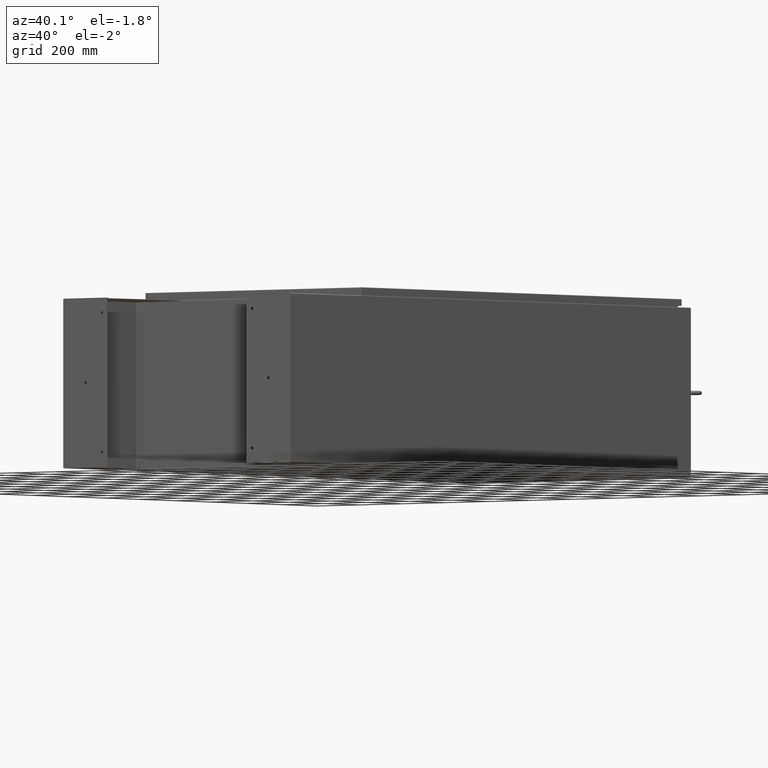
[diagram: clean part render]
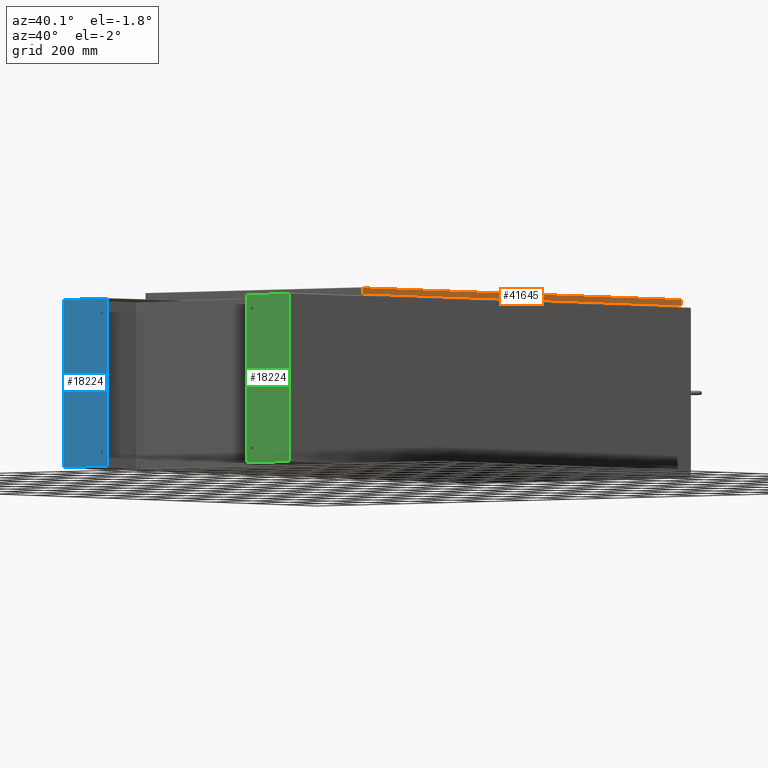
[diagram: same view with three faces highlighted in distinct colors, each labeled with its STEP entity id]
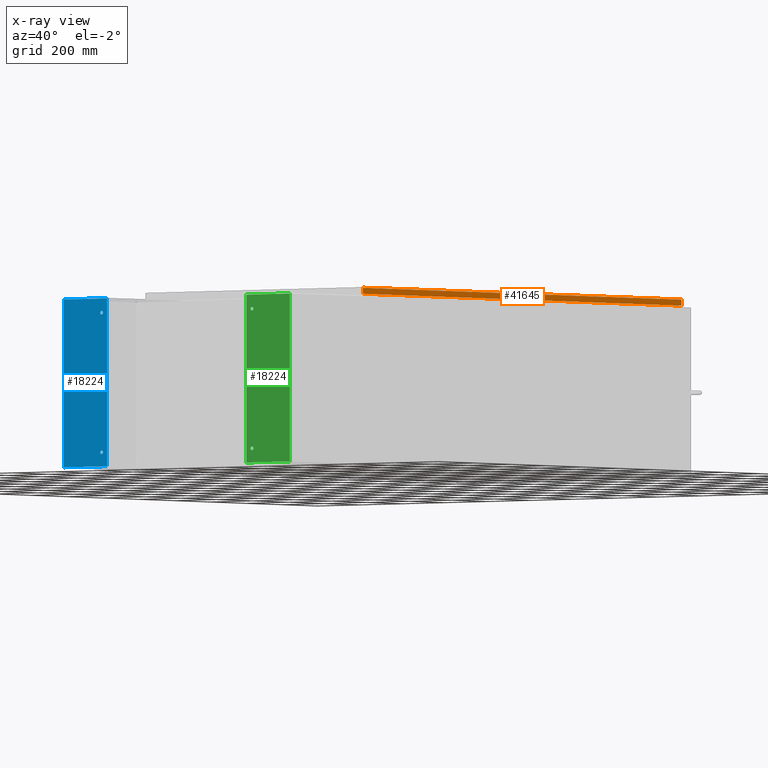
[diagram: x-ray of the same camera — body ghosted, the three highlighted faces saturated]
A machine part, auxiliary view with three faces highlighted in distinct colors.
The next image is the same camera in x-ray (body ghosted, the three faces saturated) — at least one of them is partly hidden behind the body in this view.
Their STEP definitions:

[orange] entity #41645 — the highlighted planar face has unit normal (1, 0, 0).
#6047 = DIRECTION ( 'NONE',  ( 5.064839849203732200E-015, 0.0000000000000000000, -1.000000000000000000 ) ) ;
#7415 = ORIENTED_EDGE ( 'NONE', *, *, #33975, .T. ) ;
#10074 = DIRECTION ( 'NONE',  ( 0.0000000000000000000, -1.000000000000000000, 0.0000000000000000000 ) ) ;
#11335 = LINE ( 'NONE', #42850, #54951 ) ;
#15499 = CARTESIAN_POINT ( 'NONE',  ( 20.07800000000000700, -35.00515786437626500, -0.9376999999999996400 ) ) ;
#17558 = DIRECTION ( 'NONE',  ( -5.064839849203732200E-015, -6.982962677686269100E-015, 1.000000000000000000 ) ) ;
#17920 = CARTESIAN_POINT ( 'NONE',  ( 20.07800000000000300, 35.00515786437627200, -0.08769999999999550400 ) ) ;
#18531 = LINE ( 'NONE', #61390, #60519 ) ;
#19330 = VECTOR ( 'NONE', #51786, 39.37007874015748100 ) ;
#20976 = LINE ( 'NONE', #35345, #19330 ) ;
#21884 = CARTESIAN_POINT ( 'NONE',  ( 20.07800000000000300, 0.0000000000000000000, -0.08769999999999550400 ) ) ;
#33229 = PLANE ( 'NONE',  #34019 ) ;
#33975 = EDGE_CURVE ( 'NONE', #35648, #63081, #63575, .T. ) ;
#34019 = AXIS2_PLACEMENT_3D ( 'NONE', #43775, #38813, #6047 ) ;
#35345 = CARTESIAN_POINT ( 'NONE',  ( 20.07800000000000300, 35.00515786437627200, 3.463923790417795700E-013 ) ) ;
#35648 = VERTEX_POINT ( 'NONE', #17920 ) ;
#38813 = DIRECTION ( 'NONE',  ( 1.000000000000000000, 0.0000000000000000000, 5.064839849203732200E-015 ) ) ;
#41645 = ADVANCED_FACE ( 'NONE', ( #43080 ), #33229, .T. ) ;
#42850 = CARTESIAN_POINT ( 'NONE',  ( 20.07800000000000700, -35.09400000000000100, -0.9376999999999997600 ) ) ;
#43080 = FACE_OUTER_BOUND ( 'NONE', #67974, .T. ) ;
#43775 = CARTESIAN_POINT ( 'NONE',  ( 20.07800000000000300, 0.0000000000000000000, 1.019526681483241200E-013 ) ) ;
#46030 = ORIENTED_EDGE ( 'NONE', *, *, #55880, .T. ) ;
#48846 = VECTOR ( 'NONE', #66216, 39.37007874015748100 ) ;
#48992 = ORIENTED_EDGE ( 'NONE', *, *, #57742, .F. ) ;
#51786 = DIRECTION ( 'NONE',  ( -5.064839849203732200E-015, -6.982962677686269100E-015, 1.000000000000000000 ) ) ;
#52105 = VERTEX_POINT ( 'NONE', #66719 ) ;
#54951 = VECTOR ( 'NONE', #10074, 39.37007874015748100 ) ;
#55880 = EDGE_CURVE ( 'NONE', #52105, #35648, #20976, .T. ) ;
#56372 = EDGE_CURVE ( 'NONE', #58879, #63081, #18531, .T. ) ;
#57742 = EDGE_CURVE ( 'NONE', #52105, #58879, #11335, .T. ) ;
#58879 = VERTEX_POINT ( 'NONE', #15499 ) ;
#60321 = ORIENTED_EDGE ( 'NONE', *, *, #56372, .F. ) ;
#60519 = VECTOR ( 'NONE', #17558, 39.37007874015748100 ) ;
#61390 = CARTESIAN_POINT ( 'NONE',  ( 20.07800000000000300, -35.00515786437627200, -0.07469999999999962800 ) ) ;
#61899 = CARTESIAN_POINT ( 'NONE',  ( 20.07800000000000300, -35.00515786437627200, -0.08769999999999550400 ) ) ;
#63081 = VERTEX_POINT ( 'NONE', #61899 ) ;
#63575 = LINE ( 'NONE', #21884, #48846 ) ;
#66216 = DIRECTION ( 'NONE',  ( 0.0000000000000000000, -1.000000000000000000, 0.0000000000000000000 ) ) ;
#66719 = CARTESIAN_POINT ( 'NONE',  ( 20.07800000000000700, 35.00515786437627200, -0.9376999999999997600 ) ) ;
#67974 = EDGE_LOOP ( 'NONE', ( #60321, #48992, #46030, #7415 ) ) ;

[blue] entity #18224 — the highlighted planar face has unit normal (-0, -1, -0).
#694 = FACE_BOUND ( 'NONE', #67462, .T. ) ;
#1068 = DIRECTION ( 'NONE',  ( -0.0000000000000000000, -0.0000000000000000000, 1.000000000000000000 ) ) ;
#2091 = EDGE_CURVE ( 'NONE', #45206, #56647, #53242, .T. ) ;
#2272 = DIRECTION ( 'NONE',  ( 0.0000000000000000000, 0.0000000000000000000, -1.000000000000000000 ) ) ;
#4250 = EDGE_CURVE ( 'NONE', #63208, #42103, #25428, .T. ) ;
#4715 = EDGE_CURVE ( 'NONE', #68664, #68539, #9237, .T. ) ;
#5572 = LINE ( 'NONE', #19056, #45692 ) ;
#6250 = CARTESIAN_POINT ( 'NONE',  ( 11.87900000000000300, 3.999999999999999600, -0.1050000000000000000 ) ) ;
#8078 = LINE ( 'NONE', #21714, #64678 ) ;
#8393 = CARTESIAN_POINT ( 'NONE',  ( 9.878999999999999600, -3.000000000000001300, -0.1050000000000000000 ) ) ;
#9081 = CARTESIAN_POINT ( 'NONE',  ( -11.87899999999999800, -4.000000000000000900, -0.1050000000000000000 ) ) ;
#9237 = CIRCLE ( 'NONE', #28256, 0.2499999999999987000 ) ;
#9274 = CARTESIAN_POINT ( 'NONE',  ( 0.0000000000000000000, 0.0000000000000000000, -0.1050000000000000000 ) ) ;
#9886 = PLANE ( 'NONE',  #69728 ) ;
#10389 = ORIENTED_EDGE ( 'NONE', *, *, #4715, .T. ) ;
#11093 = ORIENTED_EDGE ( 'NONE', *, *, #46187, .T. ) ;
#13162 = CARTESIAN_POINT ( 'NONE',  ( 0.2500000000000000000, 0.0000000000000000000, -0.1050000000000000000 ) ) ;
#13881 = DIRECTION ( 'NONE',  ( -1.000000000000000000, 0.0000000000000000000, 0.0000000000000000000 ) ) ;
#14643 = CIRCLE ( 'NONE', #27545, 0.2499999999999998100 ) ;
#14755 = DIRECTION ( 'NONE',  ( -1.000000000000000000, 0.0000000000000000000, 0.0000000000000000000 ) ) ;
#14786 = CARTESIAN_POINT ( 'NONE',  ( -0.2500000000000000000, 3.061616997868383000E-017, -0.1050000000000000000 ) ) ;
#15208 = FACE_OUTER_BOUND ( 'NONE', #21815, .T. ) ;
#16199 = EDGE_CURVE ( 'NONE', #41740, #66442, #14643, .T. ) ;
#16361 = VERTEX_POINT ( 'NONE', #6250 ) ;
#16731 = CARTESIAN_POINT ( 'NONE',  ( 9.629000000000001300, -3.000000000000001300, -0.1050000000000000000 ) ) ;
#18094 = CARTESIAN_POINT ( 'NONE',  ( -11.87899999999999800, 3.999999999999999600, -0.1050000000000000000 ) ) ;
#18224 = ADVANCED_FACE ( 'NONE', ( #15208, #694, #29693, #42614 ), #9886, .T. ) ;
#18647 = CARTESIAN_POINT ( 'NONE',  ( -9.878999999999999600, -3.000000000000001300, -0.1050000000000000000 ) ) ;
#19056 = CARTESIAN_POINT ( 'NONE',  ( -11.87899999999999800, -4.000000000000000900, -0.1050000000000000000 ) ) ;
#21630 = CIRCLE ( 'NONE', #48139, 0.2499999999999998100 ) ;
#21714 = CARTESIAN_POINT ( 'NONE',  ( 11.87900000000000300, -4.000000000000000900, -0.1050000000000000000 ) ) ;
#21760 = ORIENTED_EDGE ( 'NONE', *, *, #49189, .F. ) ;
#21815 = EDGE_LOOP ( 'NONE', ( #56128, #70777, #39269, #21760 ) ) ;
#23075 = VECTOR ( 'NONE', #23489, 39.37007874015748100 ) ;
#23489 = DIRECTION ( 'NONE',  ( -1.000000000000000000, -0.0000000000000000000, -0.0000000000000000000 ) ) ;
#24067 = DIRECTION ( 'NONE',  ( -1.000000000000000000, 0.0000000000000000000, 0.0000000000000000000 ) ) ;
#24222 = DIRECTION ( 'NONE',  ( 1.000000000000000000, 0.0000000000000000000, 0.0000000000000000000 ) ) ;
#24489 = CARTESIAN_POINT ( 'NONE',  ( 11.87900000000000300, 3.999999999999999600, -0.1050000000000000000 ) ) ;
#25428 = CIRCLE ( 'NONE', #65621, 0.2500000000000000000 ) ;
#25452 = ORIENTED_EDGE ( 'NONE', *, *, #4250, .T. ) ;
#26159 = DIRECTION ( 'NONE',  ( -0.0000000000000000000, -1.000000000000000000, -0.0000000000000000000 ) ) ;
#27545 = AXIS2_PLACEMENT_3D ( 'NONE', #53971, #2272, #28511 ) ;
#28123 = CARTESIAN_POINT ( 'NONE',  ( -9.629000000000001300, -3.000000000000001300, -0.1050000000000000000 ) ) ;
#28256 = AXIS2_PLACEMENT_3D ( 'NONE', #44282, #1068, #47714 ) ;
#28511 = DIRECTION ( 'NONE',  ( -1.000000000000000000, 0.0000000000000000000, 0.0000000000000000000 ) ) ;
#29693 = FACE_BOUND ( 'NONE', #34291, .T. ) ;
#30716 = DIRECTION ( 'NONE',  ( 0.0000000000000000000, 0.0000000000000000000, -1.000000000000000000 ) ) ;
#32805 = DIRECTION ( 'NONE',  ( 0.0000000000000000000, 1.000000000000000000, 0.0000000000000000000 ) ) ;
#34291 = EDGE_LOOP ( 'NONE', ( #10389, #11093 ) ) ;
#34932 = EDGE_LOOP ( 'NONE', ( #61821, #62663 ) ) ;
#36652 = EDGE_CURVE ( 'NONE', #42103, #63208, #44353, .T. ) ;
#37225 = DIRECTION ( 'NONE',  ( -1.000000000000000000, 0.0000000000000000000, -0.0000000000000000000 ) ) ;
#38771 = VECTOR ( 'NONE', #26159, 39.37007874015748100 ) ;
#39269 = ORIENTED_EDGE ( 'NONE', *, *, #2091, .F. ) ;
#39509 = LINE ( 'NONE', #18094, #23075 ) ;
#40035 = EDGE_CURVE ( 'NONE', #56647, #65969, #5572, .T. ) ;
#40319 = CARTESIAN_POINT ( 'NONE',  ( 11.87900000000000300, -4.000000000000000900, -0.1050000000000000000 ) ) ;
#41740 = VERTEX_POINT ( 'NONE', #55709 ) ;
#42103 = VERTEX_POINT ( 'NONE', #14786 ) ;
#42614 = FACE_BOUND ( 'NONE', #34932, .T. ) ;
#43304 = CARTESIAN_POINT ( 'NONE',  ( -10.12900000000000100, -3.000000000000001300, -0.1050000000000000000 ) ) ;
#44282 = CARTESIAN_POINT ( 'NONE',  ( -9.878999999999999600, -3.000000000000001300, -0.1050000000000000000 ) ) ;
#44353 = CIRCLE ( 'NONE', #50212, 0.2500000000000000000 ) ;
#45206 = VERTEX_POINT ( 'NONE', #57872 ) ;
#45692 = VECTOR ( 'NONE', #24222, 39.37007874015748100 ) ;
#46187 = EDGE_CURVE ( 'NONE', #68539, #68664, #46330, .T. ) ;
#46330 = CIRCLE ( 'NONE', #51134, 0.2499999999999987000 ) ;
#46588 = DIRECTION ( 'NONE',  ( 0.0000000000000000000, 0.0000000000000000000, -1.000000000000000000 ) ) ;
#47486 = DIRECTION ( 'NONE',  ( -0.0000000000000000000, -0.0000000000000000000, 1.000000000000000000 ) ) ;
#47714 = DIRECTION ( 'NONE',  ( -1.000000000000000000, 0.0000000000000000000, 0.0000000000000000000 ) ) ;
#48139 = AXIS2_PLACEMENT_3D ( 'NONE', #8393, #46588, #13881 ) ;
#49189 = EDGE_CURVE ( 'NONE', #16361, #45206, #39509, .T. ) ;
#50212 = AXIS2_PLACEMENT_3D ( 'NONE', #9274, #47486, #14755 ) ;
#51134 = AXIS2_PLACEMENT_3D ( 'NONE', #18647, #56911, #24067 ) ;
#52224 = CARTESIAN_POINT ( 'NONE',  ( 0.0000000000000000000, 0.0000000000000000000, -0.1050000000000000000 ) ) ;
#52293 = DIRECTION ( 'NONE',  ( -0.0000000000000000000, -0.0000000000000000000, 1.000000000000000000 ) ) ;
#52935 = DIRECTION ( 'NONE',  ( -1.000000000000000000, 0.0000000000000000000, 0.0000000000000000000 ) ) ;
#53242 = LINE ( 'NONE', #9081, #38771 ) ;
#53971 = CARTESIAN_POINT ( 'NONE',  ( 9.878999999999999600, -3.000000000000001300, -0.1050000000000000000 ) ) ;
#55709 = CARTESIAN_POINT ( 'NONE',  ( 10.12900000000000100, -3.000000000000001300, -0.1050000000000000000 ) ) ;
#56128 = ORIENTED_EDGE ( 'NONE', *, *, #69962, .F. ) ;
#56647 = VERTEX_POINT ( 'NONE', #69977 ) ;
#56911 = DIRECTION ( 'NONE',  ( -0.0000000000000000000, -0.0000000000000000000, 1.000000000000000000 ) ) ;
#57872 = CARTESIAN_POINT ( 'NONE',  ( -11.87899999999999800, 3.999999999999999600, -0.1050000000000000000 ) ) ;
#60276 = EDGE_CURVE ( 'NONE', #66442, #41740, #21630, .T. ) ;
#61821 = ORIENTED_EDGE ( 'NONE', *, *, #16199, .F. ) ;
#62663 = ORIENTED_EDGE ( 'NONE', *, *, #60276, .F. ) ;
#63208 = VERTEX_POINT ( 'NONE', #13162 ) ;
#63284 = ORIENTED_EDGE ( 'NONE', *, *, #36652, .T. ) ;
#64678 = VECTOR ( 'NONE', #32805, 39.37007874015748100 ) ;
#65621 = AXIS2_PLACEMENT_3D ( 'NONE', #52224, #52293, #52935 ) ;
#65969 = VERTEX_POINT ( 'NONE', #40319 ) ;
#66442 = VERTEX_POINT ( 'NONE', #16731 ) ;
#67462 = EDGE_LOOP ( 'NONE', ( #25452, #63284 ) ) ;
#68539 = VERTEX_POINT ( 'NONE', #43304 ) ;
#68664 = VERTEX_POINT ( 'NONE', #28123 ) ;
#69728 = AXIS2_PLACEMENT_3D ( 'NONE', #24489, #30716, #37225 ) ;
#69962 = EDGE_CURVE ( 'NONE', #65969, #16361, #8078, .T. ) ;
#69977 = CARTESIAN_POINT ( 'NONE',  ( -11.87899999999999800, -4.000000000000000900, -0.1050000000000000000 ) ) ;
#70777 = ORIENTED_EDGE ( 'NONE', *, *, #40035, .F. ) ;

[green] entity #18224 — the highlighted planar face has unit normal (0, -1, 0).
#694 = FACE_BOUND ( 'NONE', #67462, .T. ) ;
#1068 = DIRECTION ( 'NONE',  ( -0.0000000000000000000, -0.0000000000000000000, 1.000000000000000000 ) ) ;
#2091 = EDGE_CURVE ( 'NONE', #45206, #56647, #53242, .T. ) ;
#2272 = DIRECTION ( 'NONE',  ( 0.0000000000000000000, 0.0000000000000000000, -1.000000000000000000 ) ) ;
#4250 = EDGE_CURVE ( 'NONE', #63208, #42103, #25428, .T. ) ;
#4715 = EDGE_CURVE ( 'NONE', #68664, #68539, #9237, .T. ) ;
#5572 = LINE ( 'NONE', #19056, #45692 ) ;
#6250 = CARTESIAN_POINT ( 'NONE',  ( 11.87900000000000300, 3.999999999999999600, -0.1050000000000000000 ) ) ;
#8078 = LINE ( 'NONE', #21714, #64678 ) ;
#8393 = CARTESIAN_POINT ( 'NONE',  ( 9.878999999999999600, -3.000000000000001300, -0.1050000000000000000 ) ) ;
#9081 = CARTESIAN_POINT ( 'NONE',  ( -11.87899999999999800, -4.000000000000000900, -0.1050000000000000000 ) ) ;
#9237 = CIRCLE ( 'NONE', #28256, 0.2499999999999987000 ) ;
#9274 = CARTESIAN_POINT ( 'NONE',  ( 0.0000000000000000000, 0.0000000000000000000, -0.1050000000000000000 ) ) ;
#9886 = PLANE ( 'NONE',  #69728 ) ;
#10389 = ORIENTED_EDGE ( 'NONE', *, *, #4715, .T. ) ;
#11093 = ORIENTED_EDGE ( 'NONE', *, *, #46187, .T. ) ;
#13162 = CARTESIAN_POINT ( 'NONE',  ( 0.2500000000000000000, 0.0000000000000000000, -0.1050000000000000000 ) ) ;
#13881 = DIRECTION ( 'NONE',  ( -1.000000000000000000, 0.0000000000000000000, 0.0000000000000000000 ) ) ;
#14643 = CIRCLE ( 'NONE', #27545, 0.2499999999999998100 ) ;
#14755 = DIRECTION ( 'NONE',  ( -1.000000000000000000, 0.0000000000000000000, 0.0000000000000000000 ) ) ;
#14786 = CARTESIAN_POINT ( 'NONE',  ( -0.2500000000000000000, 3.061616997868383000E-017, -0.1050000000000000000 ) ) ;
#15208 = FACE_OUTER_BOUND ( 'NONE', #21815, .T. ) ;
#16199 = EDGE_CURVE ( 'NONE', #41740, #66442, #14643, .T. ) ;
#16361 = VERTEX_POINT ( 'NONE', #6250 ) ;
#16731 = CARTESIAN_POINT ( 'NONE',  ( 9.629000000000001300, -3.000000000000001300, -0.1050000000000000000 ) ) ;
#18094 = CARTESIAN_POINT ( 'NONE',  ( -11.87899999999999800, 3.999999999999999600, -0.1050000000000000000 ) ) ;
#18224 = ADVANCED_FACE ( 'NONE', ( #15208, #694, #29693, #42614 ), #9886, .T. ) ;
#18647 = CARTESIAN_POINT ( 'NONE',  ( -9.878999999999999600, -3.000000000000001300, -0.1050000000000000000 ) ) ;
#19056 = CARTESIAN_POINT ( 'NONE',  ( -11.87899999999999800, -4.000000000000000900, -0.1050000000000000000 ) ) ;
#21630 = CIRCLE ( 'NONE', #48139, 0.2499999999999998100 ) ;
#21714 = CARTESIAN_POINT ( 'NONE',  ( 11.87900000000000300, -4.000000000000000900, -0.1050000000000000000 ) ) ;
#21760 = ORIENTED_EDGE ( 'NONE', *, *, #49189, .F. ) ;
#21815 = EDGE_LOOP ( 'NONE', ( #56128, #70777, #39269, #21760 ) ) ;
#23075 = VECTOR ( 'NONE', #23489, 39.37007874015748100 ) ;
#23489 = DIRECTION ( 'NONE',  ( -1.000000000000000000, -0.0000000000000000000, -0.0000000000000000000 ) ) ;
#24067 = DIRECTION ( 'NONE',  ( -1.000000000000000000, 0.0000000000000000000, 0.0000000000000000000 ) ) ;
#24222 = DIRECTION ( 'NONE',  ( 1.000000000000000000, 0.0000000000000000000, 0.0000000000000000000 ) ) ;
#24489 = CARTESIAN_POINT ( 'NONE',  ( 11.87900000000000300, 3.999999999999999600, -0.1050000000000000000 ) ) ;
#25428 = CIRCLE ( 'NONE', #65621, 0.2500000000000000000 ) ;
#25452 = ORIENTED_EDGE ( 'NONE', *, *, #4250, .T. ) ;
#26159 = DIRECTION ( 'NONE',  ( -0.0000000000000000000, -1.000000000000000000, -0.0000000000000000000 ) ) ;
#27545 = AXIS2_PLACEMENT_3D ( 'NONE', #53971, #2272, #28511 ) ;
#28123 = CARTESIAN_POINT ( 'NONE',  ( -9.629000000000001300, -3.000000000000001300, -0.1050000000000000000 ) ) ;
#28256 = AXIS2_PLACEMENT_3D ( 'NONE', #44282, #1068, #47714 ) ;
#28511 = DIRECTION ( 'NONE',  ( -1.000000000000000000, 0.0000000000000000000, 0.0000000000000000000 ) ) ;
#29693 = FACE_BOUND ( 'NONE', #34291, .T. ) ;
#30716 = DIRECTION ( 'NONE',  ( 0.0000000000000000000, 0.0000000000000000000, -1.000000000000000000 ) ) ;
#32805 = DIRECTION ( 'NONE',  ( 0.0000000000000000000, 1.000000000000000000, 0.0000000000000000000 ) ) ;
#34291 = EDGE_LOOP ( 'NONE', ( #10389, #11093 ) ) ;
#34932 = EDGE_LOOP ( 'NONE', ( #61821, #62663 ) ) ;
#36652 = EDGE_CURVE ( 'NONE', #42103, #63208, #44353, .T. ) ;
#37225 = DIRECTION ( 'NONE',  ( -1.000000000000000000, 0.0000000000000000000, -0.0000000000000000000 ) ) ;
#38771 = VECTOR ( 'NONE', #26159, 39.37007874015748100 ) ;
#39269 = ORIENTED_EDGE ( 'NONE', *, *, #2091, .F. ) ;
#39509 = LINE ( 'NONE', #18094, #23075 ) ;
#40035 = EDGE_CURVE ( 'NONE', #56647, #65969, #5572, .T. ) ;
#40319 = CARTESIAN_POINT ( 'NONE',  ( 11.87900000000000300, -4.000000000000000900, -0.1050000000000000000 ) ) ;
#41740 = VERTEX_POINT ( 'NONE', #55709 ) ;
#42103 = VERTEX_POINT ( 'NONE', #14786 ) ;
#42614 = FACE_BOUND ( 'NONE', #34932, .T. ) ;
#43304 = CARTESIAN_POINT ( 'NONE',  ( -10.12900000000000100, -3.000000000000001300, -0.1050000000000000000 ) ) ;
#44282 = CARTESIAN_POINT ( 'NONE',  ( -9.878999999999999600, -3.000000000000001300, -0.1050000000000000000 ) ) ;
#44353 = CIRCLE ( 'NONE', #50212, 0.2500000000000000000 ) ;
#45206 = VERTEX_POINT ( 'NONE', #57872 ) ;
#45692 = VECTOR ( 'NONE', #24222, 39.37007874015748100 ) ;
#46187 = EDGE_CURVE ( 'NONE', #68539, #68664, #46330, .T. ) ;
#46330 = CIRCLE ( 'NONE', #51134, 0.2499999999999987000 ) ;
#46588 = DIRECTION ( 'NONE',  ( 0.0000000000000000000, 0.0000000000000000000, -1.000000000000000000 ) ) ;
#47486 = DIRECTION ( 'NONE',  ( -0.0000000000000000000, -0.0000000000000000000, 1.000000000000000000 ) ) ;
#47714 = DIRECTION ( 'NONE',  ( -1.000000000000000000, 0.0000000000000000000, 0.0000000000000000000 ) ) ;
#48139 = AXIS2_PLACEMENT_3D ( 'NONE', #8393, #46588, #13881 ) ;
#49189 = EDGE_CURVE ( 'NONE', #16361, #45206, #39509, .T. ) ;
#50212 = AXIS2_PLACEMENT_3D ( 'NONE', #9274, #47486, #14755 ) ;
#51134 = AXIS2_PLACEMENT_3D ( 'NONE', #18647, #56911, #24067 ) ;
#52224 = CARTESIAN_POINT ( 'NONE',  ( 0.0000000000000000000, 0.0000000000000000000, -0.1050000000000000000 ) ) ;
#52293 = DIRECTION ( 'NONE',  ( -0.0000000000000000000, -0.0000000000000000000, 1.000000000000000000 ) ) ;
#52935 = DIRECTION ( 'NONE',  ( -1.000000000000000000, 0.0000000000000000000, 0.0000000000000000000 ) ) ;
#53242 = LINE ( 'NONE', #9081, #38771 ) ;
#53971 = CARTESIAN_POINT ( 'NONE',  ( 9.878999999999999600, -3.000000000000001300, -0.1050000000000000000 ) ) ;
#55709 = CARTESIAN_POINT ( 'NONE',  ( 10.12900000000000100, -3.000000000000001300, -0.1050000000000000000 ) ) ;
#56128 = ORIENTED_EDGE ( 'NONE', *, *, #69962, .F. ) ;
#56647 = VERTEX_POINT ( 'NONE', #69977 ) ;
#56911 = DIRECTION ( 'NONE',  ( -0.0000000000000000000, -0.0000000000000000000, 1.000000000000000000 ) ) ;
#57872 = CARTESIAN_POINT ( 'NONE',  ( -11.87899999999999800, 3.999999999999999600, -0.1050000000000000000 ) ) ;
#60276 = EDGE_CURVE ( 'NONE', #66442, #41740, #21630, .T. ) ;
#61821 = ORIENTED_EDGE ( 'NONE', *, *, #16199, .F. ) ;
#62663 = ORIENTED_EDGE ( 'NONE', *, *, #60276, .F. ) ;
#63208 = VERTEX_POINT ( 'NONE', #13162 ) ;
#63284 = ORIENTED_EDGE ( 'NONE', *, *, #36652, .T. ) ;
#64678 = VECTOR ( 'NONE', #32805, 39.37007874015748100 ) ;
#65621 = AXIS2_PLACEMENT_3D ( 'NONE', #52224, #52293, #52935 ) ;
#65969 = VERTEX_POINT ( 'NONE', #40319 ) ;
#66442 = VERTEX_POINT ( 'NONE', #16731 ) ;
#67462 = EDGE_LOOP ( 'NONE', ( #25452, #63284 ) ) ;
#68539 = VERTEX_POINT ( 'NONE', #43304 ) ;
#68664 = VERTEX_POINT ( 'NONE', #28123 ) ;
#69728 = AXIS2_PLACEMENT_3D ( 'NONE', #24489, #30716, #37225 ) ;
#69962 = EDGE_CURVE ( 'NONE', #65969, #16361, #8078, .T. ) ;
#69977 = CARTESIAN_POINT ( 'NONE',  ( -11.87899999999999800, -4.000000000000000900, -0.1050000000000000000 ) ) ;
#70777 = ORIENTED_EDGE ( 'NONE', *, *, #40035, .F. ) ;